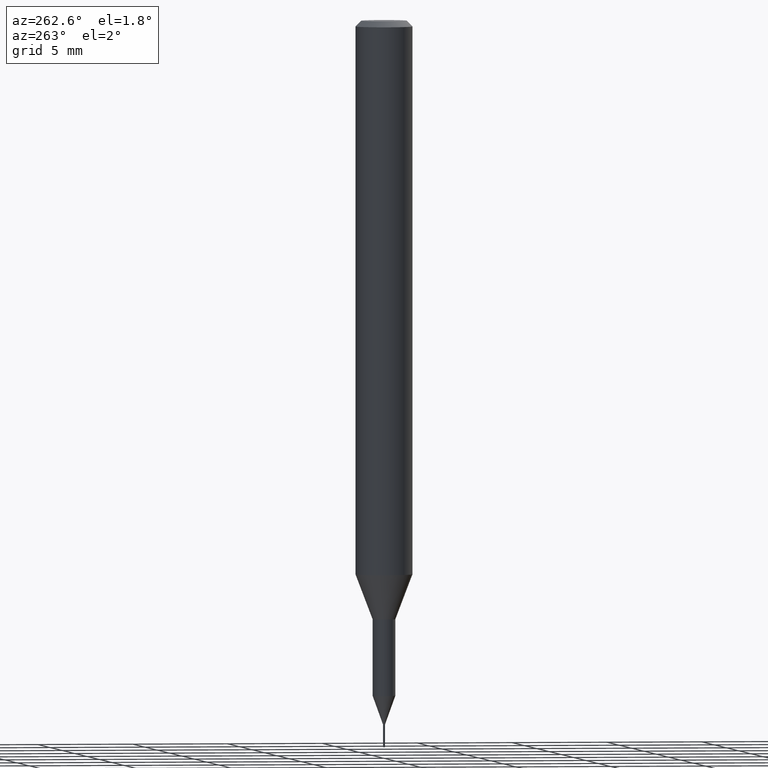
[diagram: clean part render]
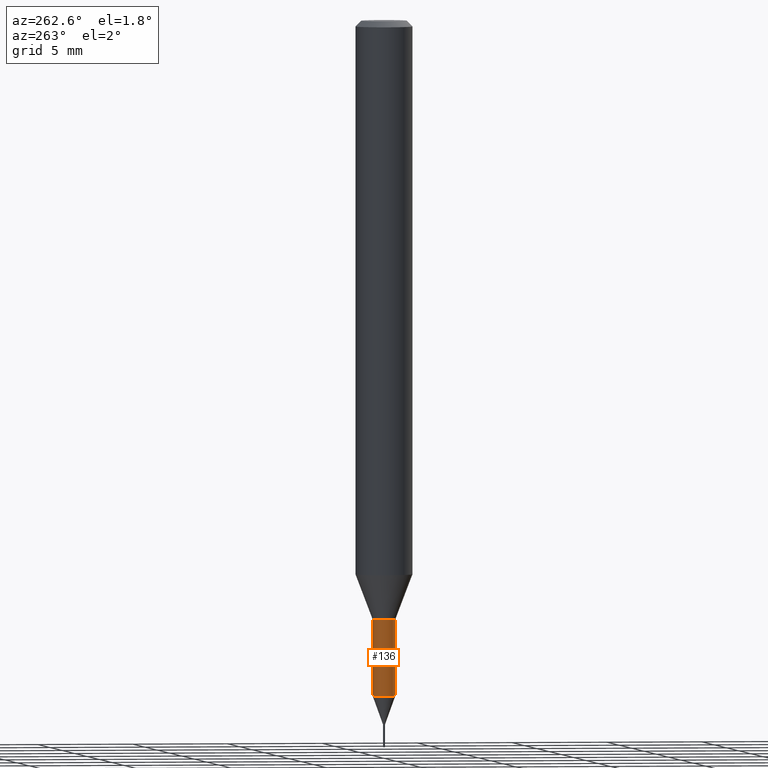
[diagram: same view with one face highlighted and labeled with its STEP entity id]
A machine part, auxiliary view. The second image highlights one B-rep face of the part: STEP entity #136.
In plain terms, the highlighted cylindrical surface (edge-blend (fillet) strip) has radius 0.5999 mm, axis along (-0, -0, 1).
Its self-contained STEP definition (entity closure, byte-faithful):
#136=ADVANCED_FACE('',(#316),#317,.T.);
#156=VERTEX_POINT('',#340);
#178=EDGE_CURVE('',#248,#238,#365,.T.);
#224=EDGE_CURVE('',#246,#238,#417,.T.);
#228=EDGE_CURVE('',#246,#156,#421,.T.);
#238=VERTEX_POINT('',#431);
#246=VERTEX_POINT('',#441);
#248=VERTEX_POINT('',#443);
#250=EDGE_CURVE('',#156,#248,#445,.T.);
#316=FACE_OUTER_BOUND('',#516,.T.);
#317=CYLINDRICAL_SURFACE('',#517,0.59995);
#340=CARTESIAN_POINT('',(7.34702581975735E-017,-0.59995,-31.3));
#365=LINE('',#577,#578);
#417=CIRCLE('',#643,0.59995);
#421=LINE('',#650,#651);
#431=CARTESIAN_POINT('',(0.0,0.59995,-35.303));
#441=CARTESIAN_POINT('',(7.34702581975735E-017,-0.59995,-35.303));
#443=CARTESIAN_POINT('',(0.0,0.59995,-31.3));
#445=CIRCLE('',#681,0.59995);
#516=EDGE_LOOP('',(#745,#746,#747,#748));
#517=AXIS2_PLACEMENT_3D('',#749,#750,#751);
#577=CARTESIAN_POINT('',(-7.34702581975735E-017,0.59995,-33.3015));
#578=VECTOR('',#808,1.0);
#643=AXIS2_PLACEMENT_3D('',#876,#877,#878);
#650=CARTESIAN_POINT('',(7.34702581975735E-017,-0.59995,-33.3015));
#651=VECTOR('',#880,1.0);
#681=AXIS2_PLACEMENT_3D('',#902,#903,#904);
#745=ORIENTED_EDGE('',*,*,#178,.T.);
#746=ORIENTED_EDGE('',*,*,#224,.F.);
#747=ORIENTED_EDGE('',*,*,#228,.T.);
#748=ORIENTED_EDGE('',*,*,#250,.T.);
#749=CARTESIAN_POINT('',(0.0,0.0,-33.3015));
#750=DIRECTION('',(-0.0,-0.0,1.0));
#751=DIRECTION('',(0.0,1.0,0.0));
#808=DIRECTION('',(0.0,0.0,-1.0));
#876=CARTESIAN_POINT('',(0.0,0.0,-35.303));
#877=DIRECTION('',(0.0,0.0,-1.0));
#878=DIRECTION('',(0.0,1.0,0.0));
#880=DIRECTION('',(-0.0,-0.0,1.0));
#902=CARTESIAN_POINT('',(0.0,0.0,-31.3));
#903=DIRECTION('',(0.0,0.0,-1.0));
#904=DIRECTION('',(0.0,1.0,0.0));